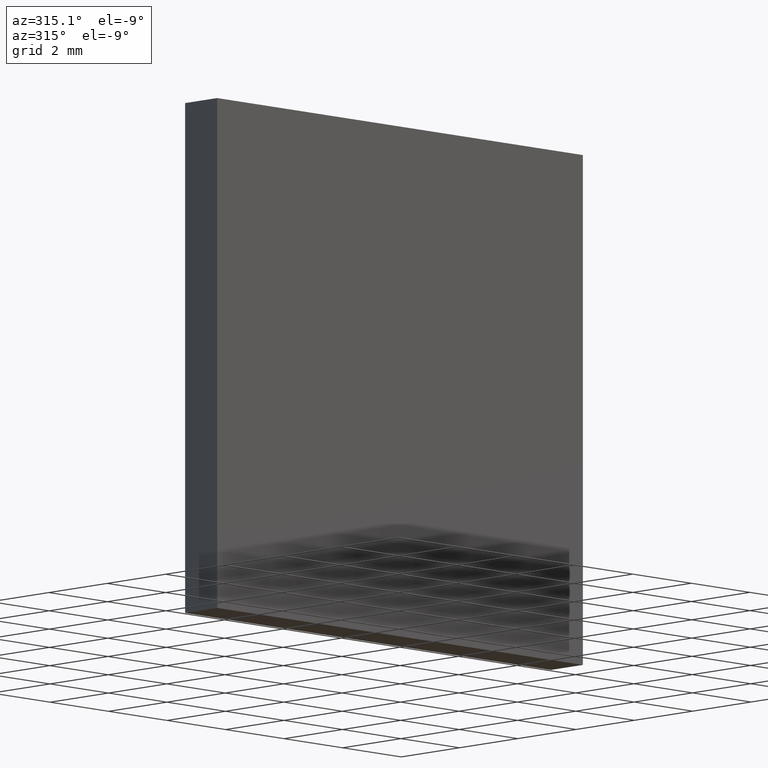
[diagram: clean part render]
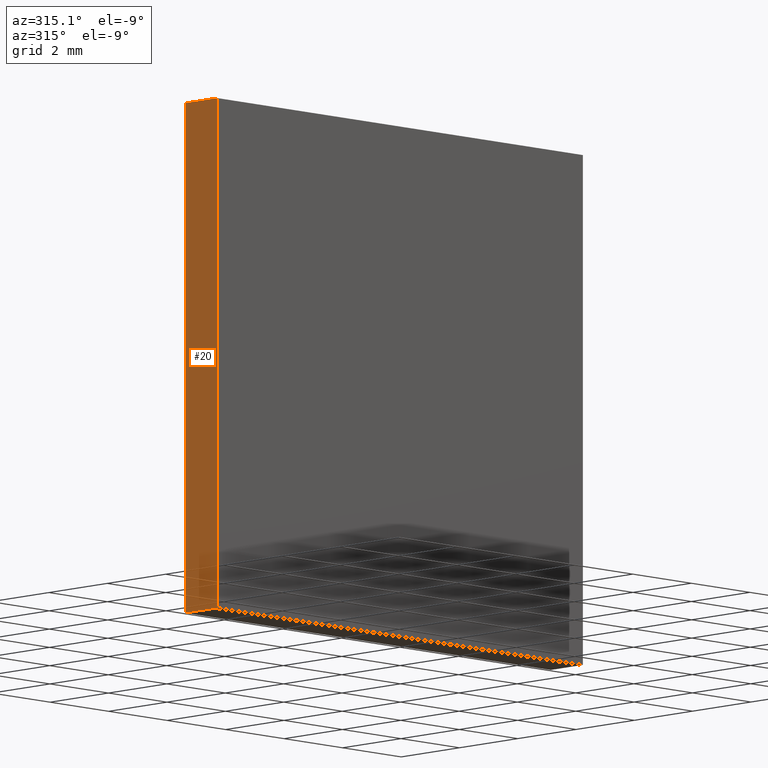
[diagram: same view with one face highlighted and labeled with its STEP entity id]
A machine part, auxiliary view. The second image highlights one B-rep face of the part: STEP entity #20.
In plain terms, the highlighted planar face has unit normal (1, 0, -0).
Its self-contained STEP definition (entity closure, byte-faithful):
#2 = ORIENTED_EDGE ( 'NONE', *, *, #161, .F. ) ;
#3 = FACE_OUTER_BOUND ( 'NONE', #133, .T. ) ;
#5 = VERTEX_POINT ( 'NONE', #49 ) ;
#7 = ORIENTED_EDGE ( 'NONE', *, *, #35, .T. ) ;
#9 = CARTESIAN_POINT ( 'NONE',  ( -6.250000000000002700, 0.0000000000000000000, -6.250000000000001800 ) ) ;
#11 = CARTESIAN_POINT ( 'NONE',  ( -6.250000000000002700, 1.100000000000000100, -6.250000000000001800 ) ) ;
#20 = ADVANCED_FACE ( 'NONE', ( #3 ), #173, .F. ) ;
#21 = ORIENTED_EDGE ( 'NONE', *, *, #192, .F. ) ;
#25 = VERTEX_POINT ( 'NONE', #94 ) ;
#26 = VECTOR ( 'NONE', #137, 1000.000000000000000 ) ;
#27 = DIRECTION ( 'NONE',  ( 1.387778780781445700E-016, 0.0000000000000000000, 1.000000000000000000 ) ) ;
#35 = EDGE_CURVE ( 'NONE', #69, #5, #64, .T. ) ;
#41 = LINE ( 'NONE', #11, #104 ) ;
#49 = CARTESIAN_POINT ( 'NONE',  ( -6.250000000000000900, 0.0000000000000000000, 6.249999999999998200 ) ) ;
#58 = CARTESIAN_POINT ( 'NONE',  ( -6.250000000000002700, 1.100000000000000100, -6.250000000000001800 ) ) ;
#64 = LINE ( 'NONE', #70, #112 ) ;
#67 = ORIENTED_EDGE ( 'NONE', *, *, #84, .T. ) ;
#69 = VERTEX_POINT ( 'NONE', #9 ) ;
#70 = CARTESIAN_POINT ( 'NONE',  ( -6.250000000000002700, 0.0000000000000000000, -6.250000000000001800 ) ) ;
#84 = EDGE_CURVE ( 'NONE', #25, #69, #41, .T. ) ;
#94 = CARTESIAN_POINT ( 'NONE',  ( -6.250000000000002700, 1.100000000000000100, -6.250000000000001800 ) ) ;
#102 = DIRECTION ( 'NONE',  ( 1.000000000000000000, 0.0000000000000000000, -1.387778780781445700E-016 ) ) ;
#104 = VECTOR ( 'NONE', #105, 1000.000000000000000 ) ;
#105 = DIRECTION ( 'NONE',  ( -0.0000000000000000000, -1.000000000000000000, -0.0000000000000000000 ) ) ;
#112 = VECTOR ( 'NONE', #27, 1000.000000000000000 ) ;
#117 = CARTESIAN_POINT ( 'NONE',  ( -6.250000000000002700, 1.100000000000000100, -6.250000000000001800 ) ) ;
#133 = EDGE_LOOP ( 'NONE', ( #7, #2, #21, #67 ) ) ;
#136 = LINE ( 'NONE', #170, #179 ) ;
#137 = DIRECTION ( 'NONE',  ( 1.387778780781445700E-016, 0.0000000000000000000, 1.000000000000000000 ) ) ;
#138 = DIRECTION ( 'NONE',  ( -0.0000000000000000000, -1.000000000000000000, -0.0000000000000000000 ) ) ;
#150 = LINE ( 'NONE', #58, #26 ) ;
#158 = VERTEX_POINT ( 'NONE', #199 ) ;
#161 = EDGE_CURVE ( 'NONE', #158, #5, #136, .T. ) ;
#170 = CARTESIAN_POINT ( 'NONE',  ( -6.250000000000000900, 1.100000000000000100, 6.249999999999998200 ) ) ;
#173 = PLANE ( 'NONE',  #177 ) ;
#177 = AXIS2_PLACEMENT_3D ( 'NONE', #117, #102, #195 ) ;
#179 = VECTOR ( 'NONE', #138, 1000.000000000000000 ) ;
#192 = EDGE_CURVE ( 'NONE', #25, #158, #150, .T. ) ;
#195 = DIRECTION ( 'NONE',  ( -1.387778780781445700E-016, 0.0000000000000000000, -1.000000000000000000 ) ) ;
#199 = CARTESIAN_POINT ( 'NONE',  ( -6.250000000000000900, 1.100000000000000100, 6.249999999999998200 ) ) ;